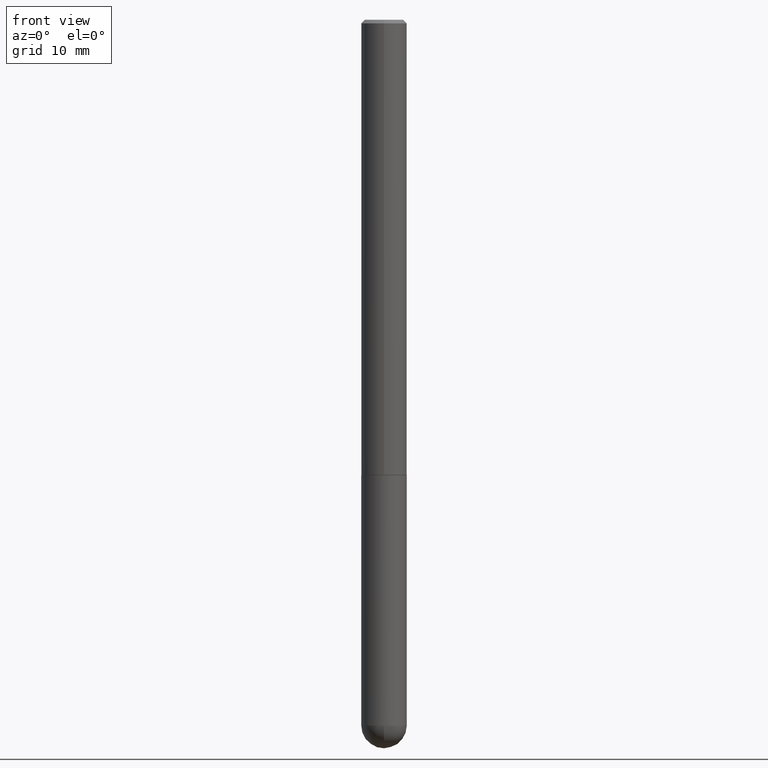
[diagram: clean part render]
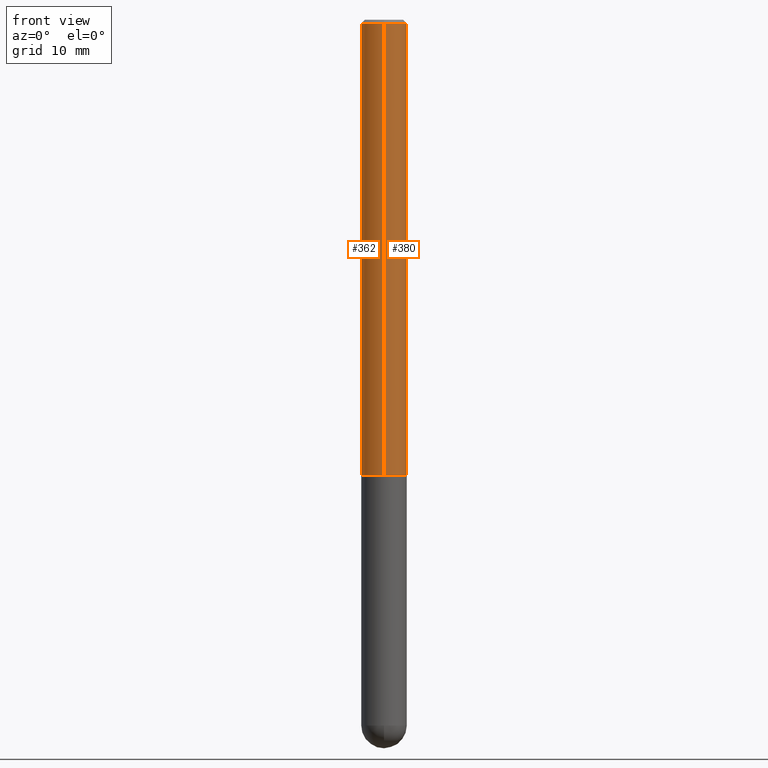
[diagram: same view with one multi-face feature highlighted, each face labeled with its STEP entity id]
A machine part, front view. The highlighted faces form ONE feature: a constant-radius fillet chain: 2 tangent blend faces with common blend radius 3.175 mm. The faces share edges in the B-rep.
Their STEP definitions:
[1] entity #362 (Cylinder):
#3 = CARTESIAN_POINT ( 'NONE',  ( -8.575622497214408537E-16, -0.1250000000000000555, -0.01999999999999959102 ) ) ;
#15 = EDGE_CURVE ( 'NONE', #21, #387, #320, .T. ) ;
#21 = VERTEX_POINT ( 'NONE', #289 ) ;
#27 = LINE ( 'NONE', #180, #210 ) ;
#29 = CYLINDRICAL_SURFACE ( 'NONE', #279, 0.1250000000000001388 ) ;
#32 = FACE_OUTER_BOUND ( 'NONE', #274, .T. ) ;
#40 = DIRECTION ( 'NONE',  ( -6.982962677686265922E-15, -1.000000000000000000, 3.483106191921935554E-15 ) ) ;
#62 = CARTESIAN_POINT ( 'NONE',  ( 8.881784197001575756E-16, 0.1249999999999915762, -2.499000000000000998 ) ) ;
#64 = CARTESIAN_POINT ( 'NONE',  ( 0.000000000000000000, 0.000000000000000000, 0.000000000000000000 ) ) ;
#65 = ORIENTED_EDGE ( 'NONE', *, *, #409, .T. ) ;
#71 = DIRECTION ( 'NONE',  ( -2.445638845695268633E-29, 3.491237832586588433E-15, 1.000000000000000000 ) ) ;
#79 = VERTEX_POINT ( 'NONE', #161 ) ;
#89 = LINE ( 'NONE', #350, #321 ) ;
#110 = DIRECTION ( 'NONE',  ( -6.982962677686265922E-15, -1.000000000000000000, 4.370956789862810105E-15 ) ) ;
#122 = AXIS2_PLACEMENT_3D ( 'NONE', #405, #373, #110 ) ;
#147 = ORIENTED_EDGE ( 'NONE', *, *, #15, .F. ) ;
#153 = DIRECTION ( 'NONE',  ( -2.445638845695268633E-29, 3.491237832586588039E-15, 1.000000000000000000 ) ) ;
#161 = CARTESIAN_POINT ( 'NONE',  ( -8.728703347107242729E-16, -0.1250000000000090206, -2.498999999999999666 ) ) ;
#165 = CARTESIAN_POINT ( 'NONE',  ( 4.891277691390543641E-31, -6.982475665173184114E-17, -0.02000000000000002470 ) ) ;
#180 = CARTESIAN_POINT ( 'NONE',  ( -8.728703347107843249E-16, -0.1250000000000001388, 4.364047290733240965E-16 ) ) ;
#189 = DIRECTION ( 'NONE',  ( -2.445638845695268633E-29, 3.491237832586588433E-15, 1.000000000000000000 ) ) ;
#210 = VECTOR ( 'NONE', #316, 39.37007874015748143 ) ;
#219 = ORIENTED_EDGE ( 'NONE', *, *, #228, .T. ) ;
#228 = EDGE_CURVE ( 'NONE', #306, #79, #259, .T. ) ;
#255 = DIRECTION ( 'NONE',  ( -6.982962677686266711E-15, -1.000000000000000000, 3.491237832586588827E-15 ) ) ;
#259 = CIRCLE ( 'NONE', #122, 0.1250000000000003053 ) ;
#274 = EDGE_LOOP ( 'NONE', ( #312, #219, #65, #147 ) ) ;
#279 = AXIS2_PLACEMENT_3D ( 'NONE', #64, #189, #255 ) ;
#289 = CARTESIAN_POINT ( 'NONE',  ( 8.728703347107837333E-16, 0.1249999999999999306, -0.02000000000000046185 ) ) ;
#300 = EDGE_CURVE ( 'NONE', #306, #21, #89, .T. ) ;
#306 = VERTEX_POINT ( 'NONE', #62 ) ;
#312 = ORIENTED_EDGE ( 'NONE', *, *, #300, .F. ) ;
#316 = DIRECTION ( 'NONE',  ( -2.445638845695268633E-29, 3.491237832586588039E-15, 1.000000000000000000 ) ) ;
#320 = CIRCLE ( 'NONE', #411, 0.1250000000000000000 ) ;
#321 = VECTOR ( 'NONE', #153, 39.37007874015748143 ) ;
#350 = CARTESIAN_POINT ( 'NONE',  ( 8.881784197001262184E-16, 0.1250000000000001388, -4.364047290733240965E-16 ) ) ;
#362 = ADVANCED_FACE ( 'NONE', ( #32 ), #29, .T. ) ;
#373 = DIRECTION ( 'NONE',  ( -2.445638845695268633E-29, 3.491237832586588433E-15, 1.000000000000000000 ) ) ;
#387 = VERTEX_POINT ( 'NONE', #3 ) ;
#405 = CARTESIAN_POINT ( 'NONE',  ( 6.111651475392477882E-29, -8.724603343633885394E-15, -2.499000000000000110 ) ) ;
#409 = EDGE_CURVE ( 'NONE', #79, #387, #27, .T. ) ;
#411 = AXIS2_PLACEMENT_3D ( 'NONE', #165, #71, #40 ) ;
[2] entity #380 (Cylinder):
#3 = CARTESIAN_POINT ( 'NONE',  ( -8.575622497214408537E-16, -0.1250000000000000555, -0.01999999999999959102 ) ) ;
#5 = CIRCLE ( 'NONE', #82, 0.1250000000000003053 ) ;
#21 = VERTEX_POINT ( 'NONE', #289 ) ;
#22 = DIRECTION ( 'NONE',  ( -6.982962677686265922E-15, -1.000000000000000000, 4.370956789862810105E-15 ) ) ;
#27 = LINE ( 'NONE', #180, #210 ) ;
#35 = CARTESIAN_POINT ( 'NONE',  ( 0.000000000000000000, 0.000000000000000000, 0.000000000000000000 ) ) ;
#37 = ORIENTED_EDGE ( 'NONE', *, *, #214, .T. ) ;
#46 = CIRCLE ( 'NONE', #348, 0.1250000000000000000 ) ;
#62 = CARTESIAN_POINT ( 'NONE',  ( 8.881784197001575756E-16, 0.1249999999999915762, -2.499000000000000998 ) ) ;
#68 = EDGE_LOOP ( 'NONE', ( #37, #243, #232, #194 ) ) ;
#79 = VERTEX_POINT ( 'NONE', #161 ) ;
#82 = AXIS2_PLACEMENT_3D ( 'NONE', #343, #136, #22 ) ;
#86 = EDGE_CURVE ( 'NONE', #387, #21, #46, .T. ) ;
#89 = LINE ( 'NONE', #350, #321 ) ;
#101 = CARTESIAN_POINT ( 'NONE',  ( 4.891277691390543641E-31, -6.982475665173184114E-17, -0.02000000000000002470 ) ) ;
#114 = DIRECTION ( 'NONE',  ( -6.982962677686266711E-15, -1.000000000000000000, 3.491237832586588827E-15 ) ) ;
#136 = DIRECTION ( 'NONE',  ( -2.445638845695268633E-29, 3.491237832586588433E-15, 1.000000000000000000 ) ) ;
#153 = DIRECTION ( 'NONE',  ( -2.445638845695268633E-29, 3.491237832586588039E-15, 1.000000000000000000 ) ) ;
#161 = CARTESIAN_POINT ( 'NONE',  ( -8.728703347107242729E-16, -0.1250000000000090206, -2.498999999999999666 ) ) ;
#180 = CARTESIAN_POINT ( 'NONE',  ( -8.728703347107843249E-16, -0.1250000000000001388, 4.364047290733240965E-16 ) ) ;
#192 = CYLINDRICAL_SURFACE ( 'NONE', #309, 0.1250000000000001388 ) ;
#194 = ORIENTED_EDGE ( 'NONE', *, *, #409, .F. ) ;
#210 = VECTOR ( 'NONE', #316, 39.37007874015748143 ) ;
#214 = EDGE_CURVE ( 'NONE', #79, #306, #5, .T. ) ;
#231 = DIRECTION ( 'NONE',  ( -2.445638845695268633E-29, 3.491237832586588433E-15, 1.000000000000000000 ) ) ;
#232 = ORIENTED_EDGE ( 'NONE', *, *, #86, .F. ) ;
#243 = ORIENTED_EDGE ( 'NONE', *, *, #300, .T. ) ;
#282 = DIRECTION ( 'NONE',  ( -2.445638845695268633E-29, 3.491237832586588433E-15, 1.000000000000000000 ) ) ;
#289 = CARTESIAN_POINT ( 'NONE',  ( 8.728703347107837333E-16, 0.1249999999999999306, -0.02000000000000046185 ) ) ;
#300 = EDGE_CURVE ( 'NONE', #306, #21, #89, .T. ) ;
#306 = VERTEX_POINT ( 'NONE', #62 ) ;
#309 = AXIS2_PLACEMENT_3D ( 'NONE', #35, #282, #114 ) ;
#316 = DIRECTION ( 'NONE',  ( -2.445638845695268633E-29, 3.491237832586588039E-15, 1.000000000000000000 ) ) ;
#321 = VECTOR ( 'NONE', #153, 39.37007874015748143 ) ;
#325 = FACE_OUTER_BOUND ( 'NONE', #68, .T. ) ;
#343 = CARTESIAN_POINT ( 'NONE',  ( 6.111651475392477882E-29, -8.724603343633885394E-15, -2.499000000000000110 ) ) ;
#348 = AXIS2_PLACEMENT_3D ( 'NONE', #101, #231, #361 ) ;
#350 = CARTESIAN_POINT ( 'NONE',  ( 8.881784197001262184E-16, 0.1250000000000001388, -4.364047290733240965E-16 ) ) ;
#361 = DIRECTION ( 'NONE',  ( -6.982962677686265922E-15, -1.000000000000000000, 3.483106191921935554E-15 ) ) ;
#380 = ADVANCED_FACE ( 'NONE', ( #325 ), #192, .T. ) ;
#387 = VERTEX_POINT ( 'NONE', #3 ) ;
#409 = EDGE_CURVE ( 'NONE', #79, #387, #27, .T. ) ;